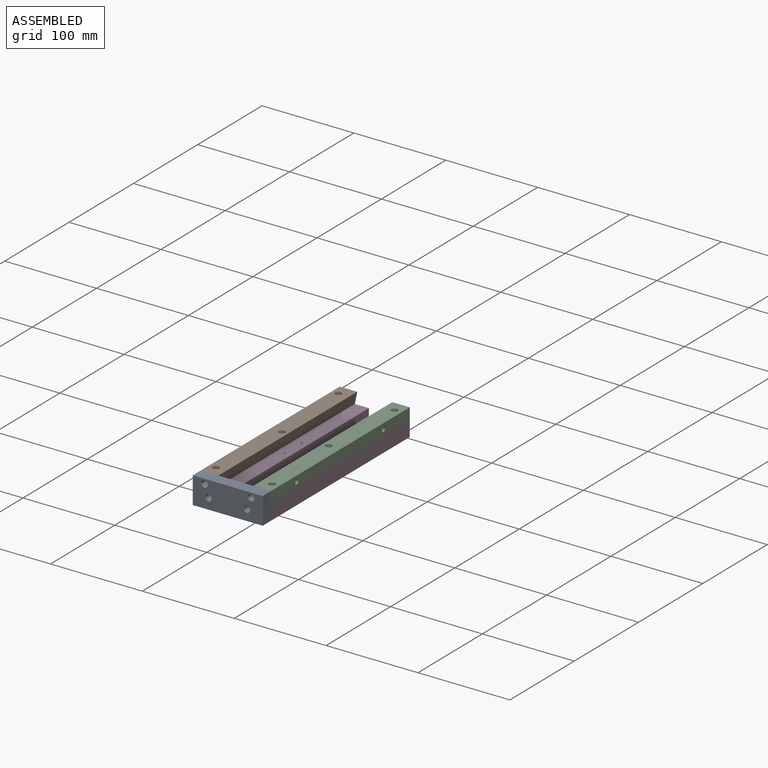
[diagram: assembled view]
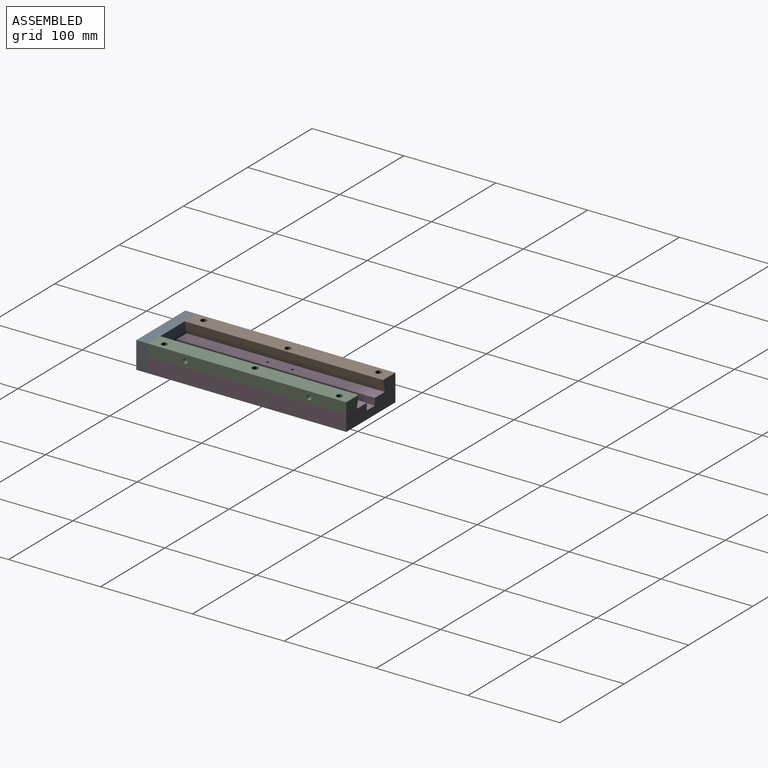
[diagram: assembled view, second angle]
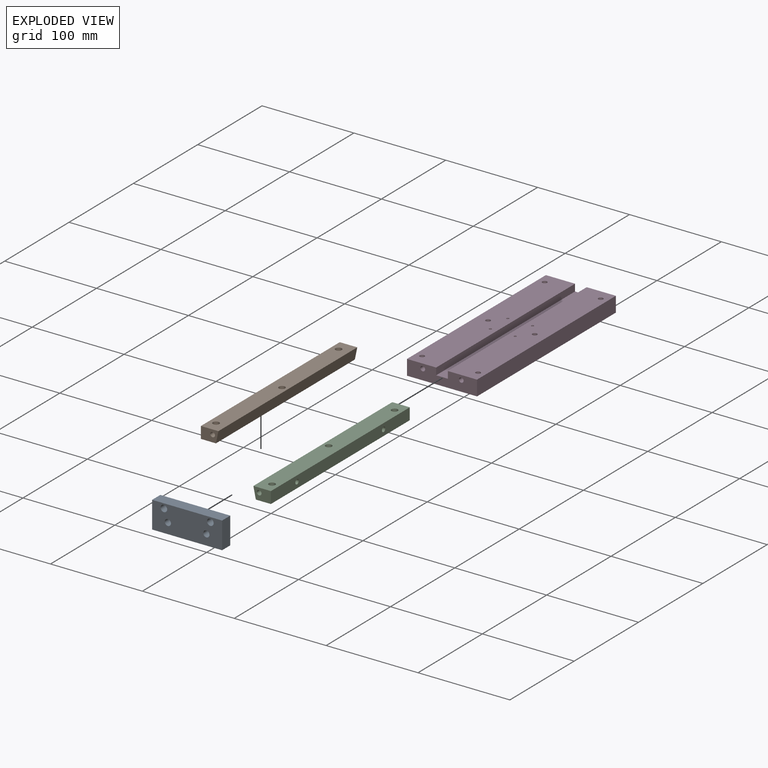
[diagram: exploded view]
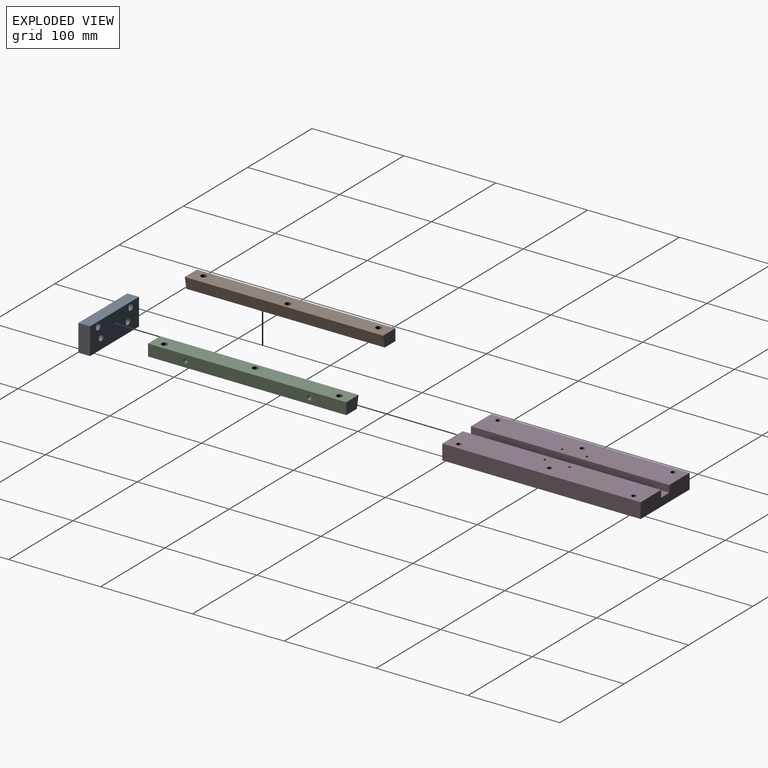
[diagram: exploded view, second angle]
ASSEMBLY  parts=4 mates=5
PART A: 10 faces, bbox 76.2x12.7x29.2 mm
  f0: plane 29.21x12.7mm, normal (1,0,0), area 371mm2, adj f1,f3,f4,f9
  f1: plane 76.2x12.7mm, normal (0,0,1), area 967.7mm2, adj f0,f2,f3,f4
  f2: plane 29.21x12.7mm, normal (-1,0,0), area 371mm2, adj f1,f3,f4,f9
  f3: plane 76.2x29.21mm, normal (0,1,0), area 2074.1mm2, adj f0,f1,f2,f5,f6,f7,f8,f9
  f4: plane 76.2x29.21mm, normal (0,-1,0), area 2074.1mm2, adj f0,f1,f2,f5,f6,f7,f8,f9
  f5: cylinder r=3.38mm len=12.7mm, axis (0,-1,0), area 269.6mm2, adj f3,f4
  f6: cylinder r=3.38mm len=12.7mm, axis (0,-1,0), area 269.6mm2, adj f3,f4
  f7: cylinder r=3.57mm len=12.7mm, axis (0,-1,0), area 284.8mm2, adj f3,f4
  f8: cylinder r=3.57mm len=12.7mm, axis (0,-1,0), area 284.8mm2, adj f3,f4
  f9: plane 76.2x12.7mm, normal (0,0,-1), area 967.7mm2, adj f0,f2,f3,f4
PART B: 11 faces, bbox 19.1x215.9x12.7 mm
  f0: plane 215.9x16.38mm, normal (0,0,-1), area 3429.5mm2, adj f1,f3,f4,f5,f6,f7,f8
  f1: plane 215.9x12.7mm, normal (1,0,0), area 2741.9mm2, adj f0,f2,f4,f5
  f2: plane 215.9x19.05mm, normal (0,0,1), area 4005.3mm2, adj f1,f3,f4,f5,f6,f7,f8
  f3: plane 215.9x12.7mm, normal (-0.98,0,-0.21), area 2801.7mm2, adj f0,f2,f4,f5
  f4: plane 19.05x12.7mm, normal (0,1,0), area 204.5mm2, adj f0,f1,f2,f3,f10
  f5: plane 19.05x12.7mm, normal (0,-1,0), area 225mm2, adj f0,f1,f2,f3
  f6: cylinder r=3.38mm len=12.7mm, axis (0,0,-1), area 269.6mm2, adj f0,f2
  f7: cylinder r=3.38mm len=12.7mm, axis (0,0,-1), area 269.6mm2, adj f0,f2
  f8: cylinder r=3.38mm len=12.7mm, axis (0,0,-1), area 269.6mm2, adj f0,f2
  f9: cone r=0mm half-angle=59deg, axis (0,1,0), area 23.9mm2, adj f10
  f10: cylinder r=2.55mm len=10.16mm, axis (0,1,0), area 163mm2, adj f4,f9
PART C: 13 faces, bbox 19.1x215.9x12.7 mm
  f0: plane 215.9x16.38mm, normal (0,0,-1), area 3429.5mm2, adj f1,f3,f4,f5,f8,f9,f10
  f1: plane 215.9x12.7mm, normal (1,0,0), area 2701mm2, adj f0,f2,f4,f5,f11,f12
  f2: plane 215.9x19.05mm, normal (0,0,1), area 4005.3mm2, adj f1,f3,f4,f5,f8,f9,f10
  f3: plane 215.9x12.7mm, normal (-0.98,0,-0.21), area 2759.9mm2, adj f0,f2,f4,f5,f11,f12
  f4: plane 19.05x12.7mm, normal (0,1,0), area 225mm2, adj f0,f1,f2,f3
  f5: plane 19.05x12.7mm, normal (0,-1,0), area 204.5mm2, adj f0,f1,f2,f3,f7
  f6: cone r=0mm half-angle=59deg, axis (0,-1,0), area 23.9mm2, adj f7
  f7: cylinder r=2.55mm len=10.16mm, axis (0,-1,0), area 163mm2, adj f5,f6
  f8: cylinder r=3.38mm len=12.7mm, axis (0,0,-1), area 269.6mm2, adj f0,f2
  f9: cylinder r=3.38mm len=12.7mm, axis (0,0,-1), area 269.6mm2, adj f0,f2
  f10: cylinder r=3.38mm len=12.7mm, axis (0,0,-1), area 269.6mm2, adj f0,f2
  f11: cylinder r=2.55mm len=18.26mm, axis (1,0,0), area 284.2mm2, adj f1,f3
  f12: cylinder r=2.55mm len=18.26mm, axis (1,0,0), area 284.2mm2, adj f1,f3
PART D: 29 faces, bbox 76.2x215.9x16.5 mm
  f0: cylinder r=3.17mm len=6.35mm, axis (0,0,1), area 106.4mm2, adj f7,f28
  f1: plane 215.9x7.62mm, normal (1,0,0), area 1645.2mm2, adj f2,f7,f8,f9
  f2: plane 215.9x31.75mm, normal (0,0,1), area 6781.9mm2, adj f1,f3,f8,f9,f13,f14,f15,f22
  f3: plane 215.9x16.51mm, normal (-1,0,0), area 3564.5mm2, adj f2,f8,f9,f24
  f4: plane 215.9x16.51mm, normal (1,0,0), area 3564.5mm2, adj f5,f8,f9,f24
  f5: plane 215.9x31.75mm, normal (0,0,1), area 6781.9mm2, adj f4,f6,f8,f9,f10,f11,f12,f20
  f6: plane 215.9x7.62mm, normal (-1,0,0), area 1645.2mm2, adj f5,f7,f8,f9
  f7: plane 215.9x12.7mm, normal (0,0,1), area 2684.6mm2, adj f0,f1,f6,f8,f9,f25,f26
  f8: plane 76.2x16.51mm, normal (0,1,0), area 1161.3mm2, adj f1,f2,f3,f4,f5,f6,f7,f24
  f9: plane 76.2x16.51mm, normal (0,-1,0), area 1120.3mm2, adj f1,f2,f3,f4,f5,f6,f7,f17
  f10: cylinder r=2.55mm len=16.51mm, axis (0,0,1), area 264.8mm2, adj f5,f24
  f11: cylinder r=2.55mm len=16.51mm, axis (0,0,1), area 264.8mm2, adj f5,f24
  f12: cylinder r=2.55mm len=16.51mm, axis (0,0,1), area 264.8mm2, adj f5,f24
  f13: cylinder r=2.55mm len=16.51mm, axis (0,0,1), area 264.8mm2, adj f2,f24
  f14: cylinder r=2.55mm len=16.51mm, axis (0,0,1), area 264.8mm2, adj f2,f24
  f15: cylinder r=2.55mm len=16.51mm, axis (0,0,1), area 264.8mm2, adj f2,f24
  f16: cone r=0mm half-angle=59deg, axis (0,-1,0), area 23.9mm2, adj f17
  f17: cylinder r=2.55mm len=38.1mm, axis (0,-1,0), area 611.1mm2, adj f9,f16
  f18: cone r=0mm half-angle=59deg, axis (0,-1,0), area 23.9mm2, adj f19
  f19: cylinder r=2.55mm len=38.1mm, axis (0,-1,0), area 611.1mm2, adj f9,f18
  f20: cylinder r=1.35mm len=16.51mm, axis (0,0,-1), area 140.3mm2, adj f5,f24
  f21: cylinder r=1.35mm len=16.51mm, axis (0,0,-1), area 140.3mm2, adj f5,f24
  f22: cylinder r=1.35mm len=16.51mm, axis (0,0,-1), area 140.3mm2, adj f2,f24
  f23: cylinder r=1.35mm len=16.51mm, axis (0,0,-1), area 140.3mm2, adj f2,f24
  f24: plane 215.9x76.2mm, normal (0,0,-1), area 15700mm2, adj f3,f4,f8,f9,f10,f11,f12,f13
  f25: cylinder r=2.02mm len=8.89mm, axis (0,0,-1), area 112.8mm2, adj f7,f24
  f26: cylinder r=2.02mm len=8.89mm, axis (0,0,-1), area 112.8mm2, adj f7,f24
  f27: cylinder r=13.59mm len=27.18mm, axis (0,0,-1), area 303.6mm2, adj f24,f28
  f28: plane 27.18x27.18mm, normal (0,0,-1), area 548.5mm2, adj f0,f27
PLACE A t=(-24.85,-31.84,32.03)mm
PLACE B rot(axis=(0,0,1),180deg) t=(-62.95,196.76,30.76)mm
PLACE C t=(13.25,-19.14,30.76)mm
PLACE D t=(-24.85,-19.14,25.68)mm
MATE parallel C.f5 <-> A.f3  axis (0,-1,0) through (4.76,-19.14,37.16)mm
MATE parallel D.f9 <-> A.f3  axis (0,-1,0) through (-18.5,-19.14,23.14)mm
MATE planar B.f4 <-> A.f3  axis (0,-1,0) through (-54.47,-19.14,37.16)mm
MATE planar C.f0 <-> D.f5  axis (0,0,-1) through (5.09,88.81,30.76)mm
MATE parallel A.f3 <-> D.f9  axis (0,1,0) through (-24.85,-19.14,28.6)mm
